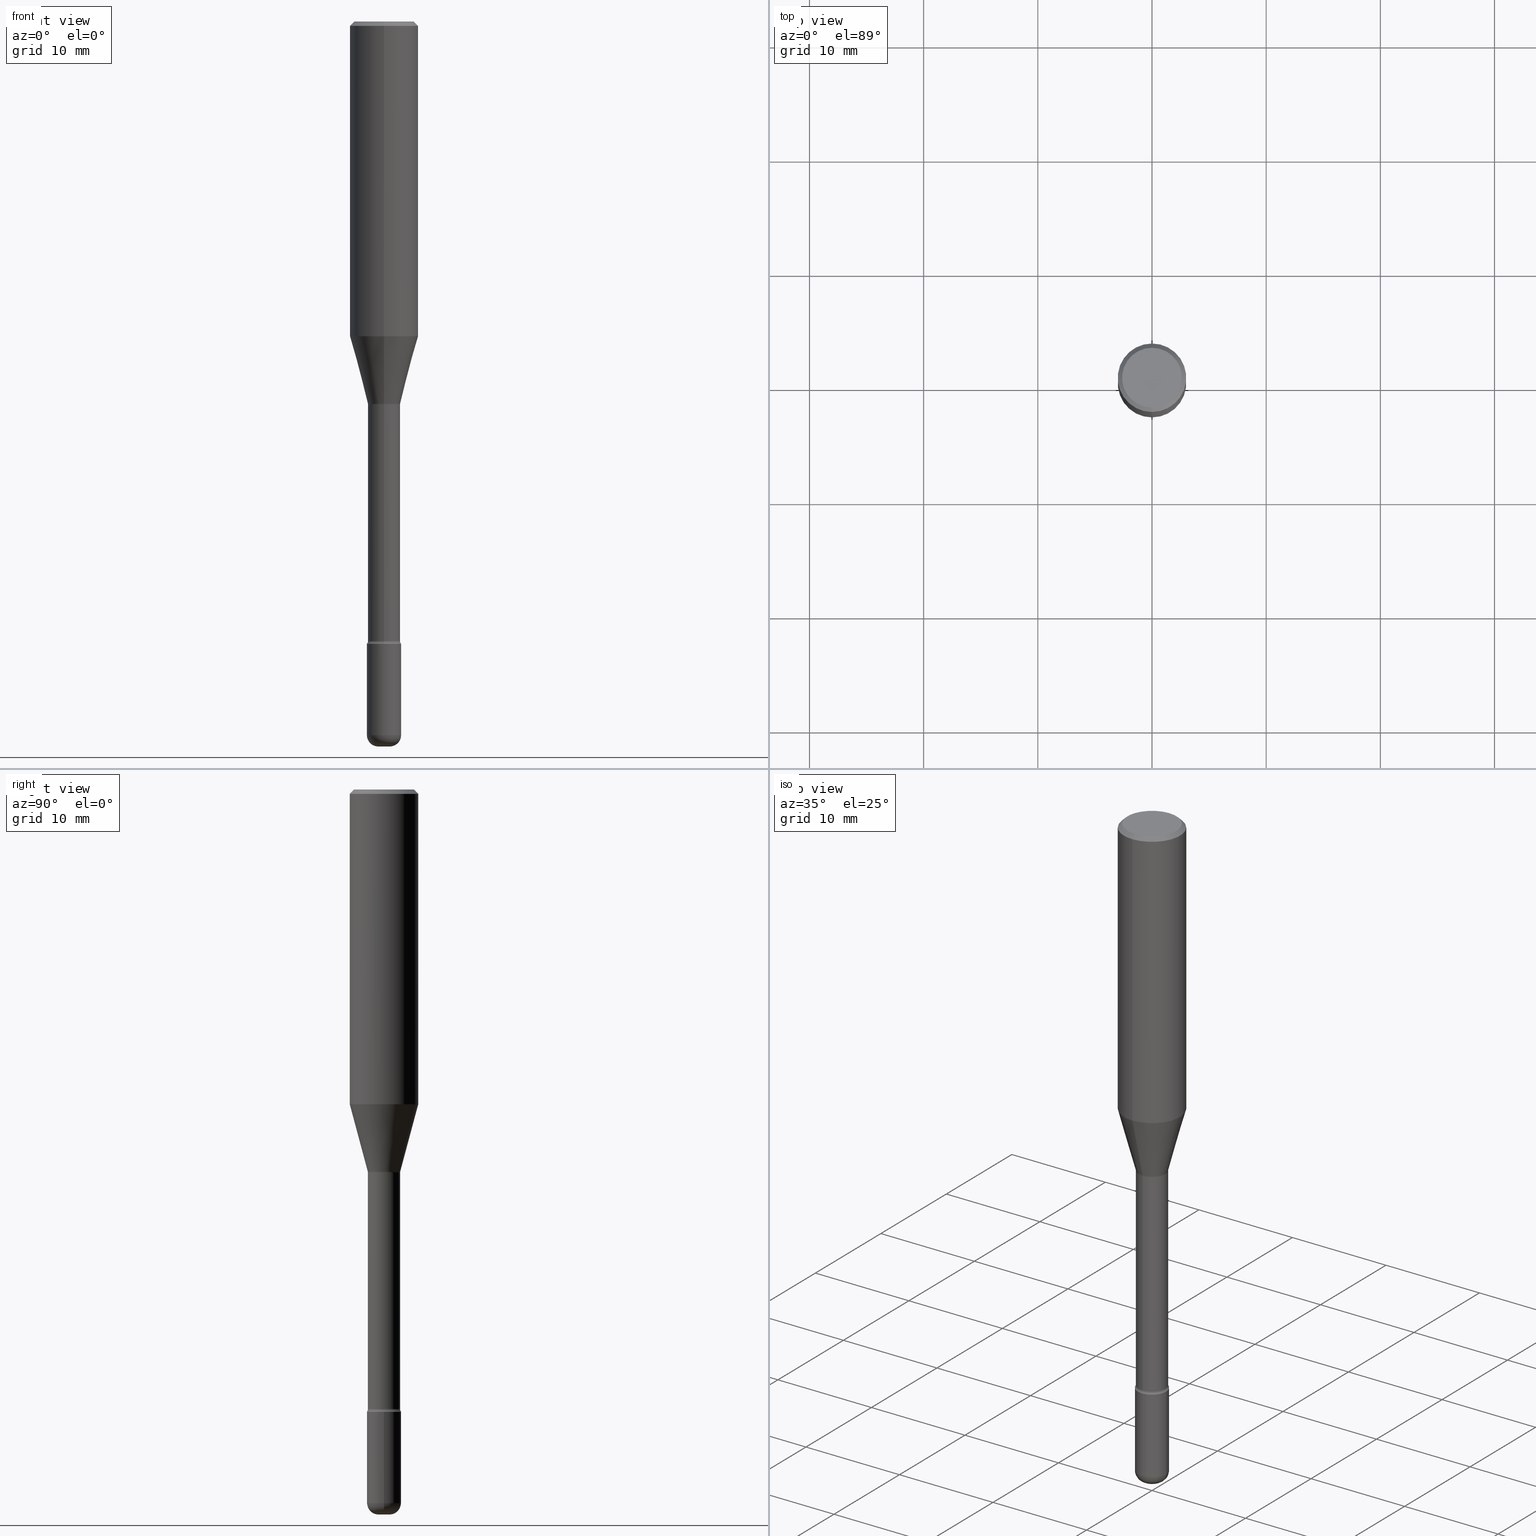
[diagram: canonical four-view strip — front | top / right | iso, engineering-drawing reading convention]
A machine part, canonical four-view strip (front | top / right | iso — engineering-drawing reading convention). The complete STEP part file that produces these views, byte-faithful:
ISO-10303-21;
HEADER;
FILE_DESCRIPTION (( 'STEP AP203' ),
    '1' );
FILE_NAME ('05370.STEP',
    '2024-03-06T20:02:18',
    ( '' ),
    ( '' ),
    'SwSTEP 2.0',
    'SolidWorks 2023',
    '' );
FILE_SCHEMA (( 'CONFIG_CONTROL_DESIGN' ));
ENDSEC;

DATA;
#1 = CARTESIAN_POINT ( 'NONE',  ( -0.01965000000000000427, -8.451517334780584853E-15, -2.460599999999999898 ) ) ;
#2 = ADVANCED_FACE ( 'NONE', ( #182 ), #361, .F. ) ;
#3 = ORIENTED_EDGE ( 'NONE', *, *, #255, .F. ) ;
#4 = CIRCLE ( 'NONE', #313, 0.05904999999999999832 ) ;
#5 = DIRECTION ( 'NONE',  ( -2.445468806185136597E-29, 3.491481338843145583E-15, 1.000000000000000000 ) ) ;
#6 = AXIS2_PLACEMENT_3D ( 'NONE', #480, #436, #559 ) ;
#7 = DIRECTION ( 'NONE',  ( -6.982962677686265922E-15, -1.000000000000000000, 3.491702207079213622E-15 ) ) ;
#8 = ORIENTED_EDGE ( 'NONE', *, *, #47, .F. ) ;
#9 = APPROVAL_STATUS ( 'not_yet_approved' ) ;
#10 = ORIENTED_EDGE ( 'NONE', *, *, #204, .F. ) ;
#11 = VERTEX_POINT ( 'NONE', #143 ) ;
#12 = ADVANCED_FACE ( 'NONE', ( #404 ), #513, .F. ) ;
#13 = DATE_AND_TIME ( #412, #309 ) ;
#14 = CARTESIAN_POINT ( 'NONE',  ( 0.01965000000000000427, -8.728354198973978275E-15, -2.460599999999999898 ) ) ;
#15 = VERTEX_POINT ( 'NONE', #400 ) ;
#16 = PERSON_AND_ORGANIZATION_ROLE ( 'creator' ) ;
#17 = AXIS2_PLACEMENT_3D ( 'NONE', #496, #108, #207 ) ;
#18 = CARTESIAN_POINT ( 'NONE',  ( 3.667971862080338817E-31, -5.237553310618831452E-17, -0.01500000000000002720 ) ) ;
#19 = ORIENTED_EDGE ( 'NONE', *, *, #124, .F. ) ;
#20 = FACE_OUTER_BOUND ( 'NONE', #60, .T. ) ;
#21 = ORIENTED_EDGE ( 'NONE', *, *, #197, .F. ) ;
#22 = SECURITY_CLASSIFICATION_LEVEL ( 'unclassified' ) ;
#23 = DIRECTION ( 'NONE',  ( -6.982962677686265922E-15, -1.000000000000000000, 3.487819265831411744E-15 ) ) ;
#24 = VERTEX_POINT ( 'NONE', #45 ) ;
#25 = DIRECTION ( 'NONE',  ( -6.982962677686265922E-15, -1.000000000000000000, 4.877332133888037765E-15 ) ) ;
#26 = AXIS2_PLACEMENT_3D ( 'NONE', #37, #346, #554 ) ;
#27 = ORIENTED_EDGE ( 'NONE', *, *, #396, .F. ) ;
#28 = CARTESIAN_POINT ( 'NONE',  ( -0.05904999999999999832, -7.621829760090250701E-15, -2.145700000000000163 ) ) ;
#29 = EDGE_LOOP ( 'NONE', ( #546, #84, #10, #58 ) ) ;
#30 = EDGE_CURVE ( 'NONE', #11, #466, #528, .T. ) ;
#31 = DIRECTION ( 'NONE',  ( -6.982962677686265922E-15, -1.000000000000000000, 4.877332133888037765E-15 ) ) ;
#32 = CC_DESIGN_PERSON_AND_ORGANIZATION_ASSIGNMENT ( #104, #284, ( #352 ) ) ;
#33 = CIRCLE ( 'NONE', #348, 0.05904999999999999832 ) ;
#34 = AXIS2_PLACEMENT_3D ( 'NONE', #485, #5, #88 ) ;
#35 = DIRECTION ( 'NONE',  ( -2.445314574720221452E-29, 3.491702207079214016E-15, 1.000000000000000000 ) ) ;
#36 = EDGE_CURVE ( 'NONE', #15, #375, #226, .T. ) ;
#37 = CARTESIAN_POINT ( 'NONE',  ( 3.230158089619171428E-29, -4.611809671378302064E-15, -1.320874787463810929 ) ) ;
#38 = ORIENTED_EDGE ( 'NONE', *, *, #156, .T. ) ;
#39 = DIRECTION ( 'NONE',  ( 1.000000000000000000, -6.982962677686265922E-15, 4.876176775795935793E-29 ) ) ;
#40 = CARTESIAN_POINT ( 'NONE',  ( -1.169113584055446105E-44, 1.669184350826100908E-30, 4.780733988912460139E-16 ) ) ;
#41 = CC_DESIGN_APPROVAL ( #213, ( #315 ) ) ;
#42 = AXIS2_PLACEMENT_3D ( 'NONE', #473, #261, #347 ) ;
#43 = EDGE_CURVE ( 'NONE', #471, #164, #446, .T. ) ;
#44 = FACE_OUTER_BOUND ( 'NONE', #187, .T. ) ;
#45 = CARTESIAN_POINT ( 'NONE',  ( -8.246878922347212441E-16, -0.1181000000000037714, -1.085273619446188276 ) ) ;
#46 = EDGE_CURVE ( 'NONE', #190, #531, #488, .T. ) ;
#47 = EDGE_CURVE ( 'NONE', #531, #164, #449, .T. ) ;
#48 = DIRECTION ( 'NONE',  ( 6.982962677686265922E-15, 1.000000000000000000, -3.491702207079214016E-15 ) ) ;
#49 = LOCAL_TIME ( 15, 2, 18.00000000000000000, #408 ) ;
#50 = DIRECTION ( 'NONE',  ( 1.000000000000000000, -6.982962677686256455E-15, 0.000000000000000000 ) ) ;
#51 = APPLICATION_CONTEXT ( 'configuration controlled 3d designs of mechanical parts and assemblies' ) ;
#52 = EDGE_LOOP ( 'NONE', ( #383, #298 ) ) ;
#53 = VECTOR ( 'NONE', #481, 39.37007874015748143 ) ;
#54 = TOROIDAL_SURFACE ( 'NONE', #378, 0.07050000000000010425, 0.01500000000000002373 ) ;
#55 = COORDINATED_UNIVERSAL_TIME_OFFSET ( 5, 0, .BEHIND. ) ;
#56 = CARTESIAN_POINT ( 'NONE',  ( 5.223545648040918700E-29, -7.457838802360693012E-15, -2.136009927760847305 ) ) ;
#57 = ADVANCED_FACE ( 'NONE', ( #276 ), #484, .T. ) ;
#58 = ORIENTED_EDGE ( 'NONE', *, *, #475, .F. ) ;
#59 = CARTESIAN_POINT ( 'NONE',  ( 5.223545648040918700E-29, -7.457838802360693012E-15, -2.136009927760847305 ) ) ;
#60 = EDGE_LOOP ( 'NONE', ( #166, #362, #535, #340 ) ) ;
#61 = CARTESIAN_POINT ( 'NONE',  ( 0.05904999999999999832, -7.904015454873111947E-15, -2.145700000000000163 ) ) ;
#62 = DESIGN_CONTEXT ( 'detailed design', #115, 'design' ) ;
#63 = EDGE_LOOP ( 'NONE', ( #262, #333, #407, #420 ) ) ;
#64 = APPROVAL_ROLE ( '' ) ;
#65 = AXIS2_PLACEMENT_3D ( 'NONE', #87, #263, #50 ) ;
#66 = CARTESIAN_POINT ( 'NONE',  ( 6.017320544499146897E-29, -8.591138982357444151E-15, -2.460599999999999898 ) ) ;
#67 = VECTOR ( 'NONE', #389, 39.37007874015748143 ) ;
#68 = ORIENTED_EDGE ( 'NONE', *, *, #363, .T. ) ;
#69 = CARTESIAN_POINT ( 'NONE',  ( 2.653835399191132044E-29, -3.789452292305104081E-15, -1.085273619446188720 ) ) ;
#70 = EDGE_LOOP ( 'NONE', ( #359, #494 ) ) ;
#71 = DIRECTION ( 'NONE',  ( 1.000000000000000000, -6.982962677686307731E-15, 0.000000000000000000 ) ) ;
#72 = EDGE_LOOP ( 'NONE', ( #110, #114, #210, #452 ) ) ;
#73 = DIRECTION ( 'NONE',  ( -2.445314574720221452E-29, 3.491702207079214016E-15, 1.000000000000000000 ) ) ;
#74 = AXIS2_PLACEMENT_3D ( 'NONE', #303, #165, #512 ) ;
#75 = EDGE_CURVE ( 'NONE', #202, #375, #472, .T. ) ;
#76 = EDGE_LOOP ( 'NONE', ( #437, #295, #350, #567 ) ) ;
#77 = CARTESIAN_POINT ( 'NONE',  ( 4.069633519066500838E-16, 0.05549999999999261774, -2.136009927760847749 ) ) ;
#78 = CARTESIAN_POINT ( 'NONE',  ( 4.123439461174264426E-16, 0.05904999999999250432, -2.145700000000000163 ) ) ;
#79 = FACE_OUTER_BOUND ( 'NONE', #245, .T. ) ;
#80 = CLOSED_SHELL ( 'NONE', ( #506, #540, #541, #175, #281, #560 ) ) ;
#81 = CIRCLE ( 'NONE', #206, 0.01965000000000000774 ) ;
#82 = AXIS2_PLACEMENT_3D ( 'NONE', #125, #510, #31 ) ;
#83 = CARTESIAN_POINT ( 'NONE',  ( -0.05905000000000003302, -8.171563496891103080E-15, -2.460599999999999898 ) ) ;
#84 = ORIENTED_EDGE ( 'NONE', *, *, #396, .T. ) ;
#85 = CC_DESIGN_PERSON_AND_ORGANIZATION_ASSIGNMENT ( #456, #16, ( #519 ) ) ;
#86 =( NAMED_UNIT ( * ) PLANE_ANGLE_UNIT ( ) SI_UNIT ( $, .RADIAN. ) );
#87 = CARTESIAN_POINT ( 'NONE',  ( 6.017320544499146897E-29, -8.591138982357444151E-15, -2.460599999999999898 ) ) ;
#88 = DIRECTION ( 'NONE',  ( 1.000000000000000000, -6.982962677686280910E-15, 4.883557194083117946E-29 ) ) ;
#89 = CARTESIAN_POINT ( 'NONE',  ( 8.391509709326781971E-16, 0.1180999999999999966, 6.570336823519088696E-17 ) ) ;
#90 = AXIS2_PLACEMENT_3D ( 'NONE', #465, #424, #326 ) ;
#91 = EDGE_CURVE ( 'NONE', #190, #471, #112, .T. ) ;
#92 = AXIS2_PLACEMENT_3D ( 'NONE', #181, #93, #177 ) ;
#93 = DIRECTION ( 'NONE',  ( -2.445468806185136597E-29, 3.491481338843145583E-15, 1.000000000000000000 ) ) ;
#94 = DIRECTION ( 'NONE',  ( -2.445314574720221172E-29, 3.491702207079214016E-15, 1.000000000000000000 ) ) ;
#95 = CARTESIAN_POINT ( 'NONE',  ( 0.000000000000000000, 0.000000000000000000, 0.000000000000000000 ) ) ;
#96 = CARTESIAN_POINT ( 'NONE',  ( 3.229954369165731744E-29, -4.612101410662676179E-15, -1.320874787463810929 ) ) ;
#97 = DIRECTION ( 'NONE',  ( 6.982962677686265922E-15, 1.000000000000000000, -3.487819265831411744E-15 ) ) ;
#98 = ADVANCED_FACE ( 'NONE', ( #439 ), #572, .T. ) ;
#99 = DIRECTION ( 'NONE',  ( -2.445314574720221452E-29, 3.491702207079214016E-15, 1.000000000000000000 ) ) ;
#100 = CIRCLE ( 'NONE', #493, 0.03940000000000005997 ) ;
#101 = CALENDAR_DATE ( 2024, 6, 3 ) ;
#102 = CARTESIAN_POINT ( 'NONE',  ( -1.169113584055446105E-44, 1.669184350826100908E-30, 4.780733988912460139E-16 ) ) ;
#103 = ORIENTED_EDGE ( 'NONE', *, *, #197, .T. ) ;
#104 = PERSON_AND_ORGANIZATION ( #435, #126 ) ;
#105 = CARTESIAN_POINT ( 'NONE',  ( -3.875544286115360749E-16, -0.05550000000000754330, -2.136009927760847305 ) ) ;
#106 = APPROVAL_DATE_TIME ( #328, #213 ) ;
#107 = CC_DESIGN_APPROVAL ( #501, ( #352 ) ) ;
#108 = DIRECTION ( 'NONE',  ( -1.000000000000000000, 6.982962677686265922E-15, -4.883557194083112340E-29 ) ) ;
#109 = AXIS2_PLACEMENT_3D ( 'NONE', #95, #184, #355 ) ;
#110 = ORIENTED_EDGE ( 'NONE', *, *, #458, .F. ) ;
#111 = EDGE_CURVE ( 'NONE', #455, #380, #183, .T. ) ;
#112 = CIRCLE ( 'NONE', #357, 0.05550000000000008399 ) ;
#113 = DIRECTION ( 'NONE',  ( 2.445314574720221452E-29, -3.491702207079214016E-15, -1.000000000000000000 ) ) ;
#114 = ORIENTED_EDGE ( 'NONE', *, *, #431, .T. ) ;
#115 = APPLICATION_CONTEXT ( 'configuration controlled 3d designs of mechanical parts and assemblies' ) ;
#116 = DIRECTION ( 'NONE',  ( -2.445468806185136597E-29, 3.491481338843145583E-15, 1.000000000000000000 ) ) ;
#117 = ORIENTED_EDGE ( 'NONE', *, *, #458, .T. ) ;
#118 = LINE ( 'NONE', #217, #442 ) ;
#119 = ORIENTED_EDGE ( 'NONE', *, *, #43, .F. ) ;
#120 = FACE_OUTER_BOUND ( 'NONE', #247, .T. ) ;
#121 = AXIS2_PLACEMENT_3D ( 'NONE', #429, #564, #257 ) ;
#122 = ORIENTED_EDGE ( 'NONE', *, *, #156, .F. ) ;
#123 = DIRECTION ( 'NONE',  ( -2.445468806185136597E-29, 3.491481338843145583E-15, 1.000000000000000000 ) ) ;
#124 = EDGE_CURVE ( 'NONE', #170, #377, #227, .T. ) ;
#125 = CARTESIAN_POINT ( 'NONE',  ( 3.220460959417665931E-29, -4.598545625197397204E-15, -1.316992501787273007 ) ) ;
#126 = ORGANIZATION ( 'UNSPECIFIED', 'UNSPECIFIED', '' ) ;
#127 = DIRECTION ( 'NONE',  ( -2.445314574720221172E-29, 3.491702207079214016E-15, 1.000000000000000000 ) ) ;
#128 = VECTOR ( 'NONE', #398, 39.37007874015748143 ) ;
#129 = AXIS2_PLACEMENT_3D ( 'NONE', #102, #368, #500 ) ;
#130 = CYLINDRICAL_SURFACE ( 'NONE', #229, 0.05904999999999999832 ) ;
#131 = CARTESIAN_POINT ( 'NONE',  ( -7.587710785535310407E-16, -0.1031000000000000111, 3.312380692850428747E-16 ) ) ;
#132 = CARTESIAN_POINT ( 'NONE',  ( 0.000000000000000000, 0.000000000000000000, 0.000000000000000000 ) ) ;
#133 = CARTESIAN_POINT ( 'NONE',  ( 5.246911482977179404E-29, -7.492145425729869203E-15, -2.145700000000000163 ) ) ;
#134 = EDGE_CURVE ( 'NONE', #511, #380, #486, .T. ) ;
#135 = DIRECTION ( 'NONE',  ( 1.000000000000000000, -6.982962677686266711E-15, 4.876176775795936353E-29 ) ) ;
#136 = APPROVAL_PERSON_ORGANIZATION ( #154, #213, #148 ) ;
#137 = CARTESIAN_POINT ( 'NONE',  ( 5.246911482977179404E-29, -7.492145425729869203E-15, -2.145700000000000163 ) ) ;
#138 = AXIS2_PLACEMENT_3D ( 'NONE', #267, #307, #48 ) ;
#139 = AXIS2_PLACEMENT_3D ( 'NONE', #414, #113, #149 ) ;
#140 = AXIS2_PLACEMENT_3D ( 'NONE', #530, #265, #39 ) ;
#141 =( LENGTH_UNIT ( ) NAMED_UNIT ( * ) SI_UNIT ( $, .METRE. ) );
#142 = MANIFOLD_SOLID_BREP ( 'Body-Move/Copy2[1]', #80 ) ;
#143 = CARTESIAN_POINT ( 'NONE',  ( 6.185669313853460208E-16, 0.05601111260565939248, -1.316992501787273229 ) ) ;
#144 = EDGE_CURVE ( 'NONE', #147, #455, #268, .T. ) ;
#145 = DIRECTION ( 'NONE',  ( -2.445468806185136597E-29, 3.491481338843145583E-15, 1.000000000000000000 ) ) ;
#146 = DIRECTION ( 'NONE',  ( -2.445314574720221452E-29, 3.491702207079214016E-15, 1.000000000000000000 ) ) ;
#147 = VERTEX_POINT ( 'NONE', #131 ) ;
#148 = APPROVAL_ROLE ( '' ) ;
#149 = DIRECTION ( 'NONE',  ( 6.982962677686265922E-15, 1.000000000000000000, -3.487819265831411744E-15 ) ) ;
#150 = AXIS2_PLACEMENT_3D ( 'NONE', #78, #127, #305 ) ;
#151 = APPROVAL_DATE_TIME ( #495, #501 ) ;
#152 = CYLINDRICAL_SURFACE ( 'NONE', #129, 0.1180999999999999966 ) ;
#153 = ORIENTED_EDGE ( 'NONE', *, *, #342, .T. ) ;
#154 = PERSON_AND_ORGANIZATION ( #435, #126 ) ;
#155 = DIRECTION ( 'NONE',  ( -6.982962677686265922E-15, -1.000000000000000000, 3.491702207079213622E-15 ) ) ;
#156 = EDGE_CURVE ( 'NONE', #377, #170, #433, .T. ) ;
#157 = ORIENTED_EDGE ( 'NONE', *, *, #459, .T. ) ;
#158 = DATE_TIME_ROLE ( 'creation_date' ) ;
#159 = DIRECTION ( 'NONE',  ( 1.000000000000000000, -6.982962677686243834E-15, 0.000000000000000000 ) ) ;
#160 = ORIENTED_EDGE ( 'NONE', *, *, #43, .T. ) ;
#161 = CALENDAR_DATE ( 2024, 6, 3 ) ;
#162 = DIRECTION ( 'NONE',  ( -2.445468806185136597E-29, 3.491481338843145583E-15, 1.000000000000000000 ) ) ;
#163 = CONICAL_SURFACE ( 'NONE', #241, 0.1180999999999999966, 0.7853981633974480570 ) ;
#164 = VERTEX_POINT ( 'NONE', #285 ) ;
#165 = DIRECTION ( 'NONE',  ( -2.445314574720221452E-29, 3.491702207079214016E-15, 1.000000000000000000 ) ) ;
#166 = ORIENTED_EDGE ( 'NONE', *, *, #36, .F. ) ;
#167 = DIRECTION ( 'NONE',  ( 1.000000000000000000, -6.982962677686256455E-15, 0.000000000000000000 ) ) ;
#168 = APPROVAL ( #191, 'UNSPECIFIED' ) ;
#169 = LOCAL_TIME ( 15, 2, 18.00000000000000000, #364 ) ;
#170 = VERTEX_POINT ( 'NONE', #290 ) ;
#171 = CARTESIAN_POINT ( 'NONE',  ( -4.123439461173217214E-16, -0.05905000000000752008, -2.145699999999999719 ) ) ;
#172 = CIRCLE ( 'NONE', #514, 0.01500000000000001853 ) ;
#173 = AXIS2_PLACEMENT_3D ( 'NONE', #434, #35, #565 ) ;
#174 = FACE_OUTER_BOUND ( 'NONE', #239, .T. ) ;
#175 = ADVANCED_FACE ( 'NONE', ( #203 ), #457, .T. ) ;
#176 = CARTESIAN_POINT ( 'NONE',  ( 2.653835399191132044E-29, -3.789452292305104081E-15, -1.085273619446188720 ) ) ;
#177 = DIRECTION ( 'NONE',  ( 1.000000000000000000, -6.982962677686273021E-15, 0.000000000000000000 ) ) ;
#178 = ORIENTED_EDGE ( 'NONE', *, *, #381, .T. ) ;
#179 = CONICAL_SURFACE ( 'NONE', #139, 0.1180999999999999966, 0.7853981633974480570 ) ;
#180 = EDGE_CURVE ( 'NONE', #391, #218, #4, .T. ) ;
#181 = CARTESIAN_POINT ( 'NONE',  ( 5.247242417431447608E-29, -7.491671508755737816E-15, -2.145700000000000163 ) ) ;
#182 = FACE_OUTER_BOUND ( 'NONE', #52, .T. ) ;
#183 = LINE ( 'NONE', #353, #369 ) ;
#184 = DIRECTION ( 'NONE',  ( 0.000000000000000000, 0.000000000000000000, 1.000000000000000000 ) ) ;
#185 = DIRECTION ( 'NONE',  ( -6.982962677686265922E-15, -1.000000000000000000, 4.626330217890369336E-15 ) ) ;
#186 = AXIS2_PLACEMENT_3D ( 'NONE', #133, #444, #185 ) ;
#187 = EDGE_LOOP ( 'NONE', ( #192, #157, #327, #532 ) ) ;
#188 = CARTESIAN_POINT ( 'NONE',  ( 8.391509709327049197E-16, 0.1180999999999962358, -1.085273619446189164 ) ) ;
#189 = DIRECTION ( 'NONE',  ( -2.445314574720221452E-29, 3.491702207079214016E-15, 1.000000000000000000 ) ) ;
#190 = VERTEX_POINT ( 'NONE', #105 ) ;
#191 = APPROVAL_STATUS ( 'not_yet_approved' ) ;
#192 = ORIENTED_EDGE ( 'NONE', *, *, #75, .T. ) ;
#193 = PERSON_AND_ORGANIZATION_ROLE ( 'design_supplier' ) ;
#194 = CARTESIAN_POINT ( 'NONE',  ( 0.01965000000000000774, -8.865918563724400645E-15, -2.500000000000000000 ) ) ;
#195 = ORIENTED_EDGE ( 'NONE', *, *, #91, .T. ) ;
#196 = APPROVAL_DATE_TIME ( #13, #168 ) ;
#197 = EDGE_CURVE ( 'NONE', #466, #531, #251, .T. ) ;
#198 = ADVANCED_FACE ( 'NONE', ( #293 ), #426, .T. ) ;
#199 = DIRECTION ( 'NONE',  ( -6.982962677686266711E-15, -1.000000000000000000, 3.491481338843145583E-15 ) ) ;
#200 = ORIENTED_EDGE ( 'NONE', *, *, #111, .F. ) ;
#201 = FACE_OUTER_BOUND ( 'NONE', #548, .T. ) ;
#202 = VERTEX_POINT ( 'NONE', #373 ) ;
#203 = FACE_OUTER_BOUND ( 'NONE', #70, .T. ) ;
#204 = EDGE_CURVE ( 'NONE', #24, #511, #503, .T. ) ;
#205 = EDGE_LOOP ( 'NONE', ( #555, #366, #208, #278 ) ) ;
#206 = AXIS2_PLACEMENT_3D ( 'NONE', #323, #454, #71 ) ;
#207 = DIRECTION ( 'NONE',  ( -6.982962677686270655E-15, -1.000000000000000000, 0.000000000000000000 ) ) ;
#208 = ORIENTED_EDGE ( 'NONE', *, *, #234, .F. ) ;
#209 = PLANE ( 'NONE',  #150 ) ;
#210 = ORIENTED_EDGE ( 'NONE', *, *, #124, .T. ) ;
#211 = DIRECTION ( 'NONE',  ( 1.839019923739597949E-15, 0.2588190451025246253, 0.9659258262890670910 ) ) ;
#212 = LINE ( 'NONE', #304, #67 ) ;
#213 = APPROVAL ( #9, 'UNSPECIFIED' ) ;
#214 = CIRCLE ( 'NONE', #269, 0.1180999999999999966 ) ;
#215 = ADVANCED_FACE ( 'NONE', ( #467 ), #179, .T. ) ;
#216 = AXIS2_PLACEMENT_3D ( 'NONE', #132, #145, #490 ) ;
#217 = CARTESIAN_POINT ( 'NONE',  ( -8.246878922347479668E-16, -0.1180999999999999966, 8.904434295473012272E-16 ) ) ;
#218 = VERTEX_POINT ( 'NONE', #61 ) ;
#219 = FACE_OUTER_BOUND ( 'NONE', #505, .T. ) ;
#220 = DIRECTION ( 'NONE',  ( -6.982962677686265922E-15, -1.000000000000000000, 3.491702207079214016E-15 ) ) ;
#221 = CARTESIAN_POINT ( 'NONE',  ( 0.000000000000000000, 0.000000000000000000, 0.000000000000000000 ) ) ;
#222 = DIRECTION ( 'NONE',  ( -1.000000000000000000, 7.105427357601014480E-15, 0.000000000000000000 ) ) ;
#223 = EDGE_CURVE ( 'NONE', #250, #15, #81, .T. ) ;
#224 = DIRECTION ( 'NONE',  ( -2.445314574720221452E-29, 3.491702207079214016E-15, 1.000000000000000000 ) ) ;
#225 = DIRECTION ( 'NONE',  ( -6.982962677686265922E-15, -1.000000000000000000, 4.922248637232899302E-15 ) ) ;
#226 = CIRCLE ( 'NONE', #551, 0.03940000000000005997 ) ;
#227 = CIRCLE ( 'NONE', #552, 0.05904999999999999832 ) ;
#228 = ORIENTED_EDGE ( 'NONE', *, *, #47, .T. ) ;
#229 = AXIS2_PLACEMENT_3D ( 'NONE', #221, #569, #135 ) ;
#230 = PERSON_AND_ORGANIZATION_ROLE ( 'creator' ) ;
#231 = CARTESIAN_POINT ( 'NONE',  ( 7.024477919222300476E-46, -1.005144752683258765E-31, -2.875642826482414108E-17 ) ) ;
#232 = ORIENTED_EDGE ( 'NONE', *, *, #497, .T. ) ;
#233 = DIRECTION ( 'NONE',  ( -1.000000000000000000, 6.982962677686265922E-15, -4.883557194083112340E-29 ) ) ;
#234 = EDGE_CURVE ( 'NONE', #425, #380, #214, .T. ) ;
#235 = EDGE_LOOP ( 'NONE', ( #534, #153, #178, #21 ) ) ;
#236 = EDGE_CURVE ( 'NONE', #250, #202, #100, .T. ) ;
#237 = CARTESIAN_POINT ( 'NONE',  ( 3.220460959417665931E-29, -4.598545625197397204E-15, -1.316992501787273007 ) ) ;
#238 = LOCAL_TIME ( 15, 2, 18.00000000000000000, #55 ) ;
#239 = EDGE_LOOP ( 'NONE', ( #195, #160, #8, #372 ) ) ;
#240 = AXIS2_PLACEMENT_3D ( 'NONE', #332, #162, #508 ) ;
#241 = AXIS2_PLACEMENT_3D ( 'NONE', #390, #524, #97 ) ;
#242 = SHAPE_DEFINITION_REPRESENTATION ( #329, #533 ) ;
#243 = LINE ( 'NONE', #547, #405 ) ;
#244 = PRODUCT ( '05370', '05370', '', ( #317 ) ) ;
#245 = EDGE_LOOP ( 'NONE', ( #122, #19 ) ) ;
#246 = CARTESIAN_POINT ( 'NONE',  ( 5.247242417431447608E-29, -7.491671508755737816E-15, -2.145700000000000163 ) ) ;
#247 = EDGE_LOOP ( 'NONE', ( #343, #423, #103, #228 ) ) ;
#248 = CC_DESIGN_APPROVAL ( #168, ( #519 ) ) ;
#249 = DIRECTION ( 'NONE',  ( 1.000000000000000000, -6.982962677686280910E-15, 4.883557194083117946E-29 ) ) ;
#250 = VERTEX_POINT ( 'NONE', #194 ) ;
#251 = CIRCLE ( 'NONE', #17, 0.01500000000000001159 ) ;
#252 = DIRECTION ( 'NONE',  ( 1.000000000000000000, -7.105427357601001070E-15, 4.926318213397865757E-29 ) ) ;
#253 = ORIENTED_EDGE ( 'NONE', *, *, #46, .T. ) ;
#254 = DIRECTION ( 'NONE',  ( 7.105427357601001859E-15, 1.000000000000000000, 0.000000000000000000 ) ) ;
#255 = EDGE_CURVE ( 'NONE', #380, #425, #259, .T. ) ;
#256 = EDGE_CURVE ( 'NONE', #190, #377, #172, .T. ) ;
#257 = DIRECTION ( 'NONE',  ( 7.105427357601001859E-15, 1.000000000000000000, 0.000000000000000000 ) ) ;
#258 = DIRECTION ( 'NONE',  ( -2.445314574720221172E-29, 3.491702207079214016E-15, 1.000000000000000000 ) ) ;
#259 = CIRCLE ( 'NONE', #344, 0.1180999999999999966 ) ;
#260 = VECTOR ( 'NONE', #338, 39.37007874015748143 ) ;
#261 = DIRECTION ( 'NONE',  ( -2.445314574720221452E-29, 3.491702207079214016E-15, 1.000000000000000000 ) ) ;
#262 = ORIENTED_EDGE ( 'NONE', *, *, #561, .F. ) ;
#263 = DIRECTION ( 'NONE',  ( -2.445468806185136597E-29, 3.491481338843145583E-15, 1.000000000000000000 ) ) ;
#264 = CC_DESIGN_DATE_AND_TIME_ASSIGNMENT ( #507, #158, ( #315 ) ) ;
#265 = DIRECTION ( 'NONE',  ( -2.438088387897960049E-29, 3.491481338843145188E-15, 1.000000000000000000 ) ) ;
#266 = AXIS2_PLACEMENT_3D ( 'NONE', #394, #99, #356 ) ;
#267 = CARTESIAN_POINT ( 'NONE',  ( 7.199434520694541042E-16, 0.1031000000000000111, -1.353360122366559931E-16 ) ) ;
#268 = CIRCLE ( 'NONE', #334, 0.1031000000000000111 ) ;
#269 = AXIS2_PLACEMENT_3D ( 'NONE', #18, #492, #422 ) ;
#270 = ADVANCED_FACE ( 'NONE', ( #550 ), #54, .F. ) ;
#271 = CARTESIAN_POINT ( 'NONE',  ( -8.102248135368174406E-16, -0.1181000000000000522, -0.01499999999999961607 ) ) ;
#272 = DIRECTION ( 'NONE',  ( -2.445314574720221452E-29, 3.491702207079214016E-15, 1.000000000000000000 ) ) ;
#273 = CARTESIAN_POINT ( 'NONE',  ( -1.169113584055446105E-44, 1.669184350826100908E-30, 4.780733988912460139E-16 ) ) ;
#274 = EDGE_LOOP ( 'NONE', ( #119, #117, #253, #428 ) ) ;
#275 = FACE_OUTER_BOUND ( 'NONE', #538, .T. ) ;
#276 = FACE_OUTER_BOUND ( 'NONE', #205, .T. ) ;
#277 = AXIS2_PLACEMENT_3D ( 'NONE', #518, #252, #254 ) ;
#278 = ORIENTED_EDGE ( 'NONE', *, *, #440, .F. ) ;
#279 = COORDINATED_UNIVERSAL_TIME_OFFSET ( 5, 0, .BEHIND. ) ;
#280 = DIRECTION ( 'NONE',  ( -2.445468806185136597E-29, 3.491481338843145583E-15, 1.000000000000000000 ) ) ;
#281 = ADVANCED_FACE ( 'NONE', ( #20 ), #462, .T. ) ;
#282 = ORIENTED_EDGE ( 'NONE', *, *, #144, .F. ) ;
#283 = DIRECTION ( 'NONE',  ( -6.982962677686265922E-15, -1.000000000000000000, 3.469747663417777397E-15 ) ) ;
#284 = PERSON_AND_ORGANIZATION_ROLE ( 'classification_officer' ) ;
#285 = CARTESIAN_POINT ( 'NONE',  ( 3.943512183469081661E-16, 0.05549999999999540023, -1.320874787463811373 ) ) ;
#286 = ORIENTED_EDGE ( 'NONE', *, *, #497, .F. ) ;
#287 = TOROIDAL_SURFACE ( 'NONE', #26, 0.07050000000000000711, 0.01500000000000001853 ) ;
#288 = ADVANCED_FACE ( 'NONE', ( #201 ), #152, .T. ) ;
#289 = CIRCLE ( 'NONE', #6, 0.05550000000000008399 ) ;
#290 = CARTESIAN_POINT ( 'NONE',  ( 4.195754854663917550E-16, 0.05904999999999253207, -2.145700000000000163 ) ) ;
#291 = ORIENTED_EDGE ( 'NONE', *, *, #556, .T. ) ;
#292 = PERSON_AND_ORGANIZATION ( #435, #126 ) ;
#293 = FACE_OUTER_BOUND ( 'NONE', #558, .T. ) ;
#294 = CC_DESIGN_PERSON_AND_ORGANIZATION_ASSIGNMENT ( #499, #230, ( #315 ) ) ;
#295 = ORIENTED_EDGE ( 'NONE', *, *, #36, .T. ) ;
#296 = APPROVAL_PERSON_ORGANIZATION ( #536, #501, #460 ) ;
#297 = LINE ( 'NONE', #379, #393 ) ;
#298 = ORIENTED_EDGE ( 'NONE', *, *, #144, .T. ) ;
#299 = CIRCLE ( 'NONE', #121, 0.01500000000000001853 ) ;
#300 = CYLINDRICAL_SURFACE ( 'NONE', #42, 0.05550000000000004929 ) ;
#301 = EDGE_CURVE ( 'NONE', #202, #218, #243, .T. ) ;
#302 = ORIENTED_EDGE ( 'NONE', *, *, #256, .T. ) ;
#303 = CARTESIAN_POINT ( 'NONE',  ( 3.229954369165731744E-29, -4.612101410662676179E-15, -1.320874787463810929 ) ) ;
#304 = CARTESIAN_POINT ( 'NONE',  ( -3.911235088610021883E-16, -0.05601111260566859346, -1.316992501787272785 ) ) ;
#305 = DIRECTION ( 'NONE',  ( -6.982962677686265922E-15, -1.000000000000000000, 3.491702207079214016E-15 ) ) ;
#306 = VECTOR ( 'NONE', #94, 39.37007874015748143 ) ;
#307 = DIRECTION ( 'NONE',  ( 2.445314574720221172E-29, -3.491702207079214016E-15, -1.000000000000000000 ) ) ;
#308 = DIRECTION ( 'NONE',  ( -6.982962677686265922E-15, -1.000000000000000000, 3.491702207079214016E-15 ) ) ;
#309 = LOCAL_TIME ( 15, 2, 18.00000000000000000, #331 ) ;
#310 = DIRECTION ( 'NONE',  ( -6.982962677686265922E-15, -1.000000000000000000, 4.922248637232905613E-15 ) ) ;
#311 = PLANE ( 'NONE',  #140 ) ;
#312 = DIRECTION ( 'NONE',  ( -2.445314574720221452E-29, 3.491702207079214016E-15, 1.000000000000000000 ) ) ;
#313 = AXIS2_PLACEMENT_3D ( 'NONE', #246, #280, #413 ) ;
#314 = TOROIDAL_SURFACE ( 'NONE', #34, 0.01965000000000000427, 0.03940000000000005997 ) ;
#315 = PRODUCT_DEFINITION ( 'UNKNOWN', '', #519, #62 ) ;
#316 = EDGE_CURVE ( 'NONE', #15, #250, #451, .T. ) ;
#317 = MECHANICAL_CONTEXT ( 'NONE', #51, 'mechanical' ) ;
#318 = CARTESIAN_POINT ( 'NONE',  ( 3.943512183468558548E-16, 0.05550000000000004929, 2.842839263983495232E-16 ) ) ;
#319 =( CONVERSION_BASED_UNIT ( 'INCH', #397 ) LENGTH_UNIT ( ) NAMED_UNIT ( #482 ) );
#320 = CARTESIAN_POINT ( 'NONE',  ( -3.875544286115880904E-16, -0.05550000000000004929, 6.718628713841425539E-16 ) ) ;
#321 = MANIFOLD_SOLID_BREP ( 'Body-Move/Copy2[2]', #385 ) ;
#322 = APPROVAL_STATUS ( 'not_yet_approved' ) ;
#323 = CARTESIAN_POINT ( 'NONE',  ( 6.113672015462842613E-29, -8.728703347107864943E-15, -2.500000000000000000 ) ) ;
#324 = CIRCLE ( 'NONE', #74, 0.05550000000000001460 ) ;
#325 = DATE_AND_TIME ( #421, #49 ) ;
#326 = DIRECTION ( 'NONE',  ( -1.000000000000000000, 6.982962677686265922E-15, -4.876176775795935793E-29 ) ) ;
#327 = ORIENTED_EDGE ( 'NONE', *, *, #556, .F. ) ;
#328 = DATE_AND_TIME ( #161, #238 ) ;
#329 = PRODUCT_DEFINITION_SHAPE ( 'NONE', 'NONE',  #315 ) ;
#330 = ADVANCED_FACE ( 'NONE', ( #557 ), #529, .F. ) ;
#331 = COORDINATED_UNIVERSAL_TIME_OFFSET ( 5, 0, .BEHIND. ) ;
#332 = CARTESIAN_POINT ( 'NONE',  ( 6.113672015462842613E-29, -8.728703347107864943E-15, -2.500000000000000000 ) ) ;
#333 = ORIENTED_EDGE ( 'NONE', *, *, #517, .F. ) ;
#334 = AXIS2_PLACEMENT_3D ( 'NONE', #231, #272, #409 ) ;
#335 = CIRCLE ( 'NONE', #82, 0.05601111260566399297 ) ;
#336 = CARTESIAN_POINT ( 'NONE',  ( 3.667971862080338817E-31, -5.237553310618831452E-17, -0.01500000000000002720 ) ) ;
#337 = ORIENTED_EDGE ( 'NONE', *, *, #180, .F. ) ;
#338 = DIRECTION ( 'NONE',  ( -2.445468806185136877E-29, 3.491481338843145188E-15, 1.000000000000000000 ) ) ;
#339 = CC_DESIGN_PERSON_AND_ORGANIZATION_ASSIGNMENT ( #292, #193, ( #519 ) ) ;
#340 = ORIENTED_EDGE ( 'NONE', *, *, #363, .F. ) ;
#341 = CARTESIAN_POINT ( 'NONE',  ( 8.391509709327049197E-16, 0.1180999999999999411, -0.01500000000000044006 ) ) ;
#342 = EDGE_CURVE ( 'NONE', #11, #164, #522, .T. ) ;
#343 = ORIENTED_EDGE ( 'NONE', *, *, #342, .F. ) ;
#344 = AXIS2_PLACEMENT_3D ( 'NONE', #336, #461, #23 ) ;
#345 =( GEOMETRIC_REPRESENTATION_CONTEXT ( 3 ) GLOBAL_UNCERTAINTY_ASSIGNED_CONTEXT ( ( #410 ) ) GLOBAL_UNIT_ASSIGNED_CONTEXT ( ( #319, #86, #351 ) ) REPRESENTATION_CONTEXT ( 'NONE', 'WORKASPACE' ) );
#346 = DIRECTION ( 'NONE',  ( -2.445314574720221452E-29, 3.491702207079214016E-15, 1.000000000000000000 ) ) ;
#347 = DIRECTION ( 'NONE',  ( -6.982962677686265922E-15, -1.000000000000000000, 3.491702207079214016E-15 ) ) ;
#348 = AXIS2_PLACEMENT_3D ( 'NONE', #516, #123, #167 ) ;
#349 = ORIENTED_EDGE ( 'NONE', *, *, #234, .T. ) ;
#350 = ORIENTED_EDGE ( 'NONE', *, *, #75, .F. ) ;
#351 =( NAMED_UNIT ( * ) SI_UNIT ( $, .STERADIAN. ) SOLID_ANGLE_UNIT ( ) );
#352 = SECURITY_CLASSIFICATION ( '', '', #22 ) ;
#353 = CARTESIAN_POINT ( 'NONE',  ( 8.246878922347483612E-16, 0.1180999999999999411, -0.01500000000000044006 ) ) ;
#354 = ADVANCED_FACE ( 'NONE', ( #120 ), #287, .F. ) ;
#355 = DIRECTION ( 'NONE',  ( 1.000000000000000000, 0.000000000000000000, 0.000000000000000000 ) ) ;
#356 = DIRECTION ( 'NONE',  ( -6.982962677686265922E-15, -1.000000000000000000, 4.877332133888037765E-15 ) ) ;
#357 = AXIS2_PLACEMENT_3D ( 'NONE', #450, #189, #225 ) ;
#358 = VECTOR ( 'NONE', #360, 39.37007874015748143 ) ;
#359 = ORIENTED_EDGE ( 'NONE', *, *, #223, .F. ) ;
#360 = DIRECTION ( 'NONE',  ( -4.851104656540962697E-15, -0.7071067811865497932, -0.7071067811865452413 ) ) ;
#361 = PLANE ( 'NONE',  #138 ) ;
#362 = ORIENTED_EDGE ( 'NONE', *, *, #316, .T. ) ;
#363 = EDGE_CURVE ( 'NONE', #375, #202, #33, .T. ) ;
#364 = COORDINATED_UNIVERSAL_TIME_OFFSET ( 5, 0, .BEHIND. ) ;
#365 = DIRECTION ( 'NONE',  ( -2.445314574720221452E-29, 3.491702207079214016E-15, 1.000000000000000000 ) ) ;
#366 = ORIENTED_EDGE ( 'NONE', *, *, #134, .T. ) ;
#367 = DATE_TIME_ROLE ( 'classification_date' ) ;
#368 = DIRECTION ( 'NONE',  ( -2.445314574720221452E-29, 3.491702207079214016E-15, 1.000000000000000000 ) ) ;
#369 = VECTOR ( 'NONE', #527, 39.37007874015748143 ) ;
#370 = ORIENTED_EDGE ( 'NONE', *, *, #301, .T. ) ;
#371 = CARTESIAN_POINT ( 'NONE',  ( -4.922988687768301840E-16, -0.07050000000000755662, -2.136009927760846860 ) ) ;
#372 = ORIENTED_EDGE ( 'NONE', *, *, #46, .F. ) ;
#373 = CARTESIAN_POINT ( 'NONE',  ( 0.05905000000000003302, -9.003482928474816704E-15, -2.460599999999999898 ) ) ;
#374 = APPROVAL_PERSON_ORGANIZATION ( #539, #168, #64 ) ;
#375 = VERTEX_POINT ( 'NONE', #83 ) ;
#376 = DIRECTION ( 'NONE',  ( -2.445314574720221452E-29, 3.491702207079214016E-15, 1.000000000000000000 ) ) ;
#377 = VERTEX_POINT ( 'NONE', #171 ) ;
#378 = AXIS2_PLACEMENT_3D ( 'NONE', #59, #376, #155 ) ;
#379 = CARTESIAN_POINT ( 'NONE',  ( 3.979828918379874177E-16, 0.05601111260565939248, -1.316992501787273229 ) ) ;
#380 = VERTEX_POINT ( 'NONE', #341 ) ;
#381 = EDGE_CURVE ( 'NONE', #164, #531, #324, .T. ) ;
#382 = CARTESIAN_POINT ( 'NONE',  ( -8.246878922347475723E-16, -0.1181000000000000522, -0.01499999999999961607 ) ) ;
#383 = ORIENTED_EDGE ( 'NONE', *, *, #517, .T. ) ;
#384 = CARTESIAN_POINT ( 'NONE',  ( 7.723156721521011834E-16, 0.1031000000000000111, -3.887509258146911569E-16 ) ) ;
#385 = CLOSED_SHELL ( 'NONE', ( #330, #418, #12, #215, #57, #477, #198, #288, #498, #2, #417, #270, #98, #354 ) ) ;
#386 = AXIS2_PLACEMENT_3D ( 'NONE', #237, #502, #25 ) ;
#387 = AXIS2_PLACEMENT_3D ( 'NONE', #399, #483, #308 ) ;
#388 = CARTESIAN_POINT ( 'NONE',  ( -0.05904999999999999832, 4.195754854663391478E-16, -2.904631170795521892E-30 ) ) ;
#389 = DIRECTION ( 'NONE',  ( -1.807323732225328167E-15, -0.2588190451025179084, 0.9659258262890690894 ) ) ;
#390 = CARTESIAN_POINT ( 'NONE',  ( 3.667971862080338817E-31, -5.237553310618831452E-17, -0.01500000000000002720 ) ) ;
#391 = VERTEX_POINT ( 'NONE', #28 ) ;
#392 = LINE ( 'NONE', #271, #358 ) ;
#393 = VECTOR ( 'NONE', #211, 39.37007874015748854 ) ;
#394 = CARTESIAN_POINT ( 'NONE',  ( 3.220460959417665931E-29, -4.598545625197397204E-15, -1.316992501787273007 ) ) ;
#395 = CC_DESIGN_PERSON_AND_ORGANIZATION_ASSIGNMENT ( #403, #549, ( #244 ) ) ;
#396 = EDGE_CURVE ( 'NONE', #11, #511, #297, .T. ) ;
#397 = LENGTH_MEASURE_WITH_UNIT ( LENGTH_MEASURE( 0.02539999999999999897 ), #141 );
#398 = DIRECTION ( 'NONE',  ( -2.445314574720221172E-29, 3.491702207079214016E-15, 1.000000000000000000 ) ) ;
#399 = CARTESIAN_POINT ( 'NONE',  ( 7.024477919222300476E-46, -1.005144752683258765E-31, -2.875642826482414108E-17 ) ) ;
#400 = CARTESIAN_POINT ( 'NONE',  ( -0.01965000000000000774, -8.380322598211054362E-15, -2.500000000000000000 ) ) ;
#401 = PRODUCT_RELATED_PRODUCT_CATEGORY ( 'detail', '', ( #244 ) ) ;
#402 = CC_DESIGN_DATE_AND_TIME_ASSIGNMENT ( #325, #367, ( #352 ) ) ;
#403 = PERSON_AND_ORGANIZATION ( #435, #126 ) ;
#404 = FACE_OUTER_BOUND ( 'NONE', #72, .T. ) ;
#405 = VECTOR ( 'NONE', #419, 39.37007874015748143 ) ;
#406 = CIRCLE ( 'NONE', #504, 0.1180999999999999966 ) ;
#407 = ORIENTED_EDGE ( 'NONE', *, *, #111, .T. ) ;
#408 = COORDINATED_UNIVERSAL_TIME_OFFSET ( 5, 0, .BEHIND. ) ;
#409 = DIRECTION ( 'NONE',  ( -6.982962677686265922E-15, -1.000000000000000000, 3.491702207079214016E-15 ) ) ;
#410 = UNCERTAINTY_MEASURE_WITH_UNIT (LENGTH_MEASURE( 1.000000000000000082E-05 ), #319, 'distance_accuracy_value', 'NONE');
#411 = ORIENTED_EDGE ( 'NONE', *, *, #91, .F. ) ;
#412 = CALENDAR_DATE ( 2024, 6, 3 ) ;
#413 = DIRECTION ( 'NONE',  ( 1.000000000000000000, -6.982962677686273021E-15, 0.000000000000000000 ) ) ;
#414 = CARTESIAN_POINT ( 'NONE',  ( 3.667971862080338817E-31, -5.237553310618831452E-17, -0.01500000000000002720 ) ) ;
#415 = AXIS2_PLACEMENT_3D ( 'NONE', #69, #537, #283 ) ;
#416 = CONICAL_SURFACE ( 'NONE', #173, 0.05601111260566399297, 0.2617993877991499629 ) ;
#417 = ADVANCED_FACE ( 'NONE', ( #79 ), #209, .F. ) ;
#418 = ADVANCED_FACE ( 'NONE', ( #174 ), #300, .T. ) ;
#419 = DIRECTION ( 'NONE',  ( -2.445468806185136877E-29, 3.491481338843145188E-15, 1.000000000000000000 ) ) ;
#420 = ORIENTED_EDGE ( 'NONE', *, *, #255, .T. ) ;
#421 = CALENDAR_DATE ( 2024, 6, 3 ) ;
#422 = DIRECTION ( 'NONE',  ( -6.982962677686265922E-15, -1.000000000000000000, 3.487819265831411744E-15 ) ) ;
#423 = ORIENTED_EDGE ( 'NONE', *, *, #468, .F. ) ;
#424 = DIRECTION ( 'NONE',  ( 2.438088387897960049E-29, -3.491481338843145188E-15, -1.000000000000000000 ) ) ;
#425 = VERTEX_POINT ( 'NONE', #382 ) ;
#426 = CONICAL_SURFACE ( 'NONE', #386, 0.05601111260566399297, 0.2617993877991499629 ) ;
#427 = CARTESIAN_POINT ( 'NONE',  ( 3.230158089619171428E-29, -4.611809671378302064E-15, -1.320874787463810929 ) ) ;
#428 = ORIENTED_EDGE ( 'NONE', *, *, #381, .F. ) ;
#429 = CARTESIAN_POINT ( 'NONE',  ( 5.009326287109235352E-16, 0.07049999999999263800, -2.136009927760847305 ) ) ;
#430 = CC_DESIGN_SECURITY_CLASSIFICATION ( #352, ( #519 ) ) ;
#431 = EDGE_CURVE ( 'NONE', #471, #170, #299, .T. ) ;
#432 = CARTESIAN_POINT ( 'NONE',  ( -3.911235088610021883E-16, -0.05601111260566859346, -1.316992501787272785 ) ) ;
#433 = CIRCLE ( 'NONE', #186, 0.05904999999999999832 ) ;
#434 = CARTESIAN_POINT ( 'NONE',  ( 3.220460959417665931E-29, -4.598545625197397204E-15, -1.316992501787273007 ) ) ;
#435 = PERSON ( 'UNSPECIFIED', 'UNSPECIFIED', 'UNSPECIFIED', ('UNSPECIFIED'), ('UNSPECIFIED'), ('UNSPECIFIED') ) ;
#436 = DIRECTION ( 'NONE',  ( -2.445314574720221452E-29, 3.491702207079214016E-15, 1.000000000000000000 ) ) ;
#437 = ORIENTED_EDGE ( 'NONE', *, *, #223, .T. ) ;
#438 = LOCAL_TIME ( 15, 2, 18.00000000000000000, #279 ) ;
#439 = FACE_OUTER_BOUND ( 'NONE', #274, .T. ) ;
#440 = EDGE_CURVE ( 'NONE', #24, #425, #118, .T. ) ;
#441 = AXIS2_PLACEMENT_3D ( 'NONE', #56, #146, #443 ) ;
#442 = VECTOR ( 'NONE', #258, 39.37007874015748143 ) ;
#443 = DIRECTION ( 'NONE',  ( -6.982962677686265922E-15, -1.000000000000000000, 3.491702207079213622E-15 ) ) ;
#444 = DIRECTION ( 'NONE',  ( -2.445314574720221452E-29, 3.491702207079214016E-15, 1.000000000000000000 ) ) ;
#445 = CARTESIAN_POINT ( 'NONE',  ( -3.875544286115555499E-16, -0.05550000000000462202, -1.320874787463810707 ) ) ;
#446 = LINE ( 'NONE', #318, #53 ) ;
#447 = ORIENTED_EDGE ( 'NONE', *, *, #134, .F. ) ;
#448 = CYLINDRICAL_SURFACE ( 'NONE', #216, 0.05904999999999999832 ) ;
#449 = CIRCLE ( 'NONE', #521, 0.05550000000000001460 ) ;
#450 = CARTESIAN_POINT ( 'NONE',  ( 5.223216208100687058E-29, -7.458310579105662270E-15, -2.136009927760847305 ) ) ;
#451 = CIRCLE ( 'NONE', #240, 0.01965000000000000774 ) ;
#452 = ORIENTED_EDGE ( 'NONE', *, *, #256, .F. ) ;
#453 = CALENDAR_DATE ( 2024, 6, 3 ) ;
#454 = DIRECTION ( 'NONE',  ( -2.445468806185136597E-29, 3.491481338843145583E-15, 1.000000000000000000 ) ) ;
#455 = VERTEX_POINT ( 'NONE', #384 ) ;
#456 = PERSON_AND_ORGANIZATION ( #435, #126 ) ;
#457 = PLANE ( 'NONE',  #90 ) ;
#458 = EDGE_CURVE ( 'NONE', #471, #190, #289, .T. ) ;
#459 = EDGE_CURVE ( 'NONE', #375, #391, #470, .T. ) ;
#460 = APPROVAL_ROLE ( '' ) ;
#461 = DIRECTION ( 'NONE',  ( -2.445314574720221452E-29, 3.491702207079214016E-15, 1.000000000000000000 ) ) ;
#462 = TOROIDAL_SURFACE ( 'NONE', #568, 0.01965000000000000427, 0.03940000000000005997 ) ;
#463 = CIRCLE ( 'NONE', #92, 0.05904999999999999832 ) ;
#464 = ORIENTED_EDGE ( 'NONE', *, *, #561, .T. ) ;
#465 = CARTESIAN_POINT ( 'NONE',  ( 1.372152166165963216E-16, 0.01964999999999127861, -2.500000000000000000 ) ) ;
#466 = VERTEX_POINT ( 'NONE', #432 ) ;
#467 = FACE_OUTER_BOUND ( 'NONE', #553, .T. ) ;
#468 = EDGE_CURVE ( 'NONE', #466, #11, #335, .T. ) ;
#469 = ORIENTED_EDGE ( 'NONE', *, *, #30, .T. ) ;
#470 = LINE ( 'NONE', #388, #260 ) ;
#471 = VERTEX_POINT ( 'NONE', #77 ) ;
#472 = CIRCLE ( 'NONE', #65, 0.05904999999999999832 ) ;
#473 = CARTESIAN_POINT ( 'NONE',  ( -1.169113584055446105E-44, 1.669184350826100908E-30, 4.780733988912460139E-16 ) ) ;
#474 = ORIENTED_EDGE ( 'NONE', *, *, #180, .T. ) ;
#475 = EDGE_CURVE ( 'NONE', #466, #24, #212, .T. ) ;
#476 = DIRECTION ( 'NONE',  ( -2.445314574720221452E-29, 3.491702207079214016E-15, 1.000000000000000000 ) ) ;
#477 = ADVANCED_FACE ( 'NONE', ( #478 ), #416, .T. ) ;
#478 = FACE_OUTER_BOUND ( 'NONE', #29, .T. ) ;
#479 = AXIS2_PLACEMENT_3D ( 'NONE', #273, #365, #7 ) ;
#480 = CARTESIAN_POINT ( 'NONE',  ( 5.223216208100687058E-29, -7.458310579105662270E-15, -2.136009927760847305 ) ) ;
#481 = DIRECTION ( 'NONE',  ( -2.445314574720221172E-29, 3.491702207079214016E-15, 1.000000000000000000 ) ) ;
#482 = DIMENSIONAL_EXPONENTS ( 1.000000000000000000, 0.000000000000000000, 0.000000000000000000, 0.000000000000000000, 0.000000000000000000, 0.000000000000000000, 0.000000000000000000 ) ;
#483 = DIRECTION ( 'NONE',  ( -2.445314574720221452E-29, 3.491702207079214016E-15, 1.000000000000000000 ) ) ;
#484 = CYLINDRICAL_SURFACE ( 'NONE', #479, 0.1180999999999999966 ) ;
#485 = CARTESIAN_POINT ( 'NONE',  ( 6.017320544499146897E-29, -8.591138982357444151E-15, -2.460599999999999898 ) ) ;
#486 = LINE ( 'NONE', #89, #306 ) ;
#487 = DIRECTION ( 'NONE',  ( -6.982962677686265922E-15, -1.000000000000000000, 3.469747663417777397E-15 ) ) ;
#488 = LINE ( 'NONE', #320, #128 ) ;
#489 = ORIENTED_EDGE ( 'NONE', *, *, #431, .F. ) ;
#490 = DIRECTION ( 'NONE',  ( 1.000000000000000000, -6.982962677686266711E-15, 4.876176775795936353E-29 ) ) ;
#491 = DIRECTION ( 'NONE',  ( 7.105427357601001859E-15, 1.000000000000000000, -3.491481338843145583E-15 ) ) ;
#492 = DIRECTION ( 'NONE',  ( -2.445314574720221452E-29, 3.491702207079214016E-15, 1.000000000000000000 ) ) ;
#493 = AXIS2_PLACEMENT_3D ( 'NONE', #14, #199, #159 ) ;
#494 = ORIENTED_EDGE ( 'NONE', *, *, #316, .F. ) ;
#495 = DATE_AND_TIME ( #101, #438 ) ;
#496 = CARTESIAN_POINT ( 'NONE',  ( -4.922988687768494125E-16, -0.07050000000000461453, -1.320874787463810707 ) ) ;
#497 = EDGE_CURVE ( 'NONE', #511, #24, #406, .T. ) ;
#498 = ADVANCED_FACE ( 'NONE', ( #566 ), #163, .T. ) ;
#499 = PERSON_AND_ORGANIZATION ( #435, #126 ) ;
#500 = DIRECTION ( 'NONE',  ( -6.982962677686265922E-15, -1.000000000000000000, 3.491702207079213622E-15 ) ) ;
#501 = APPROVAL ( #322, 'UNSPECIFIED' ) ;
#502 = DIRECTION ( 'NONE',  ( -2.445314574720221452E-29, 3.491702207079214016E-15, 1.000000000000000000 ) ) ;
#503 = CIRCLE ( 'NONE', #415, 0.1180999999999999966 ) ;
#504 = AXIS2_PLACEMENT_3D ( 'NONE', #176, #73, #487 ) ;
#505 = EDGE_LOOP ( 'NONE', ( #515, #68, #370, #337 ) ) ;
#506 = ADVANCED_FACE ( 'NONE', ( #44 ), #130, .T. ) ;
#507 = DATE_AND_TIME ( #453, #169 ) ;
#508 = DIRECTION ( 'NONE',  ( 1.000000000000000000, -6.982962677686307731E-15, 0.000000000000000000 ) ) ;
#509 = ORIENTED_EDGE ( 'NONE', *, *, #440, .T. ) ;
#510 = DIRECTION ( 'NONE',  ( -2.445314574720221452E-29, 3.491702207079214016E-15, 1.000000000000000000 ) ) ;
#511 = VERTEX_POINT ( 'NONE', #188 ) ;
#512 = DIRECTION ( 'NONE',  ( -6.982962677686265922E-15, -1.000000000000000000, 4.922248637232905613E-15 ) ) ;
#513 = TOROIDAL_SURFACE ( 'NONE', #441, 0.07050000000000010425, 0.01500000000000002373 ) ;
#514 = AXIS2_PLACEMENT_3D ( 'NONE', #371, #233, #545 ) ;
#515 = ORIENTED_EDGE ( 'NONE', *, *, #459, .F. ) ;
#516 = CARTESIAN_POINT ( 'NONE',  ( 6.017320544499146897E-29, -8.591138982357444151E-15, -2.460599999999999898 ) ) ;
#517 = EDGE_CURVE ( 'NONE', #455, #147, #563, .T. ) ;
#518 = CARTESIAN_POINT ( 'NONE',  ( 5.009326287109029262E-16, 0.07049999999999539968, -1.320874787463811373 ) ) ;
#519 = PRODUCT_DEFINITION_FORMATION_WITH_SPECIFIED_SOURCE ( 'ANY', '', #244, .NOT_KNOWN. ) ;
#520 = DIRECTION ( 'NONE',  ( -6.982962677686265922E-15, -1.000000000000000000, 3.491702207079214411E-15 ) ) ;
#521 = AXIS2_PLACEMENT_3D ( 'NONE', #96, #570, #310 ) ;
#522 = CIRCLE ( 'NONE', #277, 0.01500000000000001159 ) ;
#523 = ORIENTED_EDGE ( 'NONE', *, *, #475, .T. ) ;
#524 = DIRECTION ( 'NONE',  ( 2.445314574720221452E-29, -3.491702207079214016E-15, -1.000000000000000000 ) ) ;
#525 = DIRECTION ( 'NONE',  ( -6.982962677686265922E-15, -1.000000000000000000, 4.626330217890369336E-15 ) ) ;
#526 = APPLICATION_PROTOCOL_DEFINITION ( 'international standard', 'config_control_design', 1994, #51 ) ;
#527 = DIRECTION ( 'NONE',  ( 4.937700262164546464E-15, 0.7071067811865449082, -0.7071067811865501263 ) ) ;
#528 = CIRCLE ( 'NONE', #266, 0.05601111260566399297 ) ;
#529 = TOROIDAL_SURFACE ( 'NONE', #542, 0.07050000000000000711, 0.01500000000000001853 ) ;
#530 = CARTESIAN_POINT ( 'NONE',  ( 5.247242417431447608E-29, -7.491671508755737816E-15, -2.145700000000000163 ) ) ;
#531 = VERTEX_POINT ( 'NONE', #445 ) ;
#532 = ORIENTED_EDGE ( 'NONE', *, *, #301, .F. ) ;
#533 = ADVANCED_BREP_SHAPE_REPRESENTATION ( '05370', ( #142, #321, #109 ), #345 ) ;
#534 = ORIENTED_EDGE ( 'NONE', *, *, #30, .F. ) ;
#535 = ORIENTED_EDGE ( 'NONE', *, *, #236, .T. ) ;
#536 = PERSON_AND_ORGANIZATION ( #435, #126 ) ;
#537 = DIRECTION ( 'NONE',  ( -2.445314574720221452E-29, 3.491702207079214016E-15, 1.000000000000000000 ) ) ;
#538 = EDGE_LOOP ( 'NONE', ( #291, #474 ) ) ;
#539 = PERSON_AND_ORGANIZATION ( #435, #126 ) ;
#540 = ADVANCED_FACE ( 'NONE', ( #571 ), #314, .T. ) ;
#541 = ADVANCED_FACE ( 'NONE', ( #275 ), #311, .T. ) ;
#542 = AXIS2_PLACEMENT_3D ( 'NONE', #427, #476, #520 ) ;
#543 = EDGE_LOOP ( 'NONE', ( #489, #411, #302, #38 ) ) ;
#544 = APPLICATION_PROTOCOL_DEFINITION ( 'international standard', 'config_control_design', 1994, #115 ) ;
#545 = DIRECTION ( 'NONE',  ( -6.982962677686272233E-15, -1.000000000000000000, 0.000000000000000000 ) ) ;
#546 = ORIENTED_EDGE ( 'NONE', *, *, #468, .T. ) ;
#547 = CARTESIAN_POINT ( 'NONE',  ( 0.05904999999999999832, -4.123439461173740327E-16, 2.879382386107500220E-30 ) ) ;
#548 = EDGE_LOOP ( 'NONE', ( #447, #232, #509, #3 ) ) ;
#549 = PERSON_AND_ORGANIZATION_ROLE ( 'design_owner' ) ;
#550 = FACE_OUTER_BOUND ( 'NONE', #543, .T. ) ;
#551 = AXIS2_PLACEMENT_3D ( 'NONE', #1, #491, #222 ) ;
#552 = AXIS2_PLACEMENT_3D ( 'NONE', #137, #312, #525 ) ;
#553 = EDGE_LOOP ( 'NONE', ( #282, #464, #349, #200 ) ) ;
#554 = DIRECTION ( 'NONE',  ( -6.982962677686265922E-15, -1.000000000000000000, 3.491702207079214411E-15 ) ) ;
#555 = ORIENTED_EDGE ( 'NONE', *, *, #204, .T. ) ;
#556 = EDGE_CURVE ( 'NONE', #218, #391, #463, .T. ) ;
#557 = FACE_OUTER_BOUND ( 'NONE', #235, .T. ) ;
#558 = EDGE_LOOP ( 'NONE', ( #27, #469, #523, #286 ) ) ;
#559 = DIRECTION ( 'NONE',  ( -6.982962677686265922E-15, -1.000000000000000000, 4.922248637232899302E-15 ) ) ;
#560 = ADVANCED_FACE ( 'NONE', ( #219 ), #448, .T. ) ;
#561 = EDGE_CURVE ( 'NONE', #147, #425, #392, .T. ) ;
#562 = AXIS2_PLACEMENT_3D ( 'NONE', #40, #224, #220 ) ;
#563 = CIRCLE ( 'NONE', #387, 0.1031000000000000111 ) ;
#564 = DIRECTION ( 'NONE',  ( 1.000000000000000000, -7.105427357601001070E-15, 4.926318213397865757E-29 ) ) ;
#565 = DIRECTION ( 'NONE',  ( -6.982962677686265922E-15, -1.000000000000000000, 4.877332133888037765E-15 ) ) ;
#566 = FACE_OUTER_BOUND ( 'NONE', #63, .T. ) ;
#567 = ORIENTED_EDGE ( 'NONE', *, *, #236, .F. ) ;
#568 = AXIS2_PLACEMENT_3D ( 'NONE', #66, #116, #249 ) ;
#569 = DIRECTION ( 'NONE',  ( -2.445468806185136597E-29, 3.491481338843145583E-15, 1.000000000000000000 ) ) ;
#570 = DIRECTION ( 'NONE',  ( -2.445314574720221452E-29, 3.491702207079214016E-15, 1.000000000000000000 ) ) ;
#571 = FACE_OUTER_BOUND ( 'NONE', #76, .T. ) ;
#572 = CYLINDRICAL_SURFACE ( 'NONE', #562, 0.05550000000000004929 ) ;
ENDSEC;
END-ISO-10303-21;
